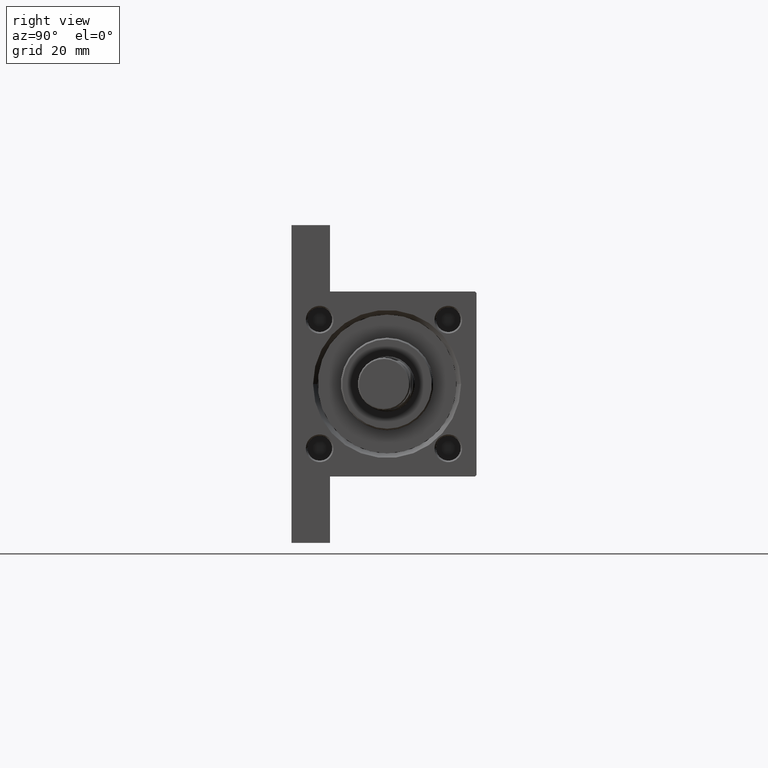
[diagram: clean part render]
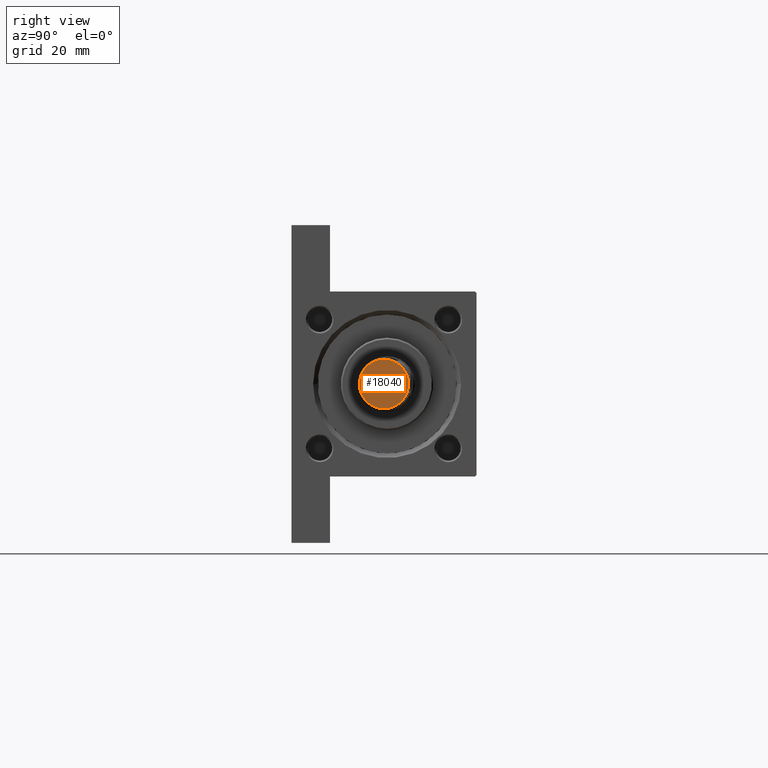
[diagram: same view with one face highlighted and labeled with its STEP entity id]
A machine part, right view. The second image highlights one B-rep face of the part: STEP entity #18040.
In plain terms, the highlighted planar face has unit normal (1, 0, 0).
Its self-contained STEP definition (entity closure, byte-faithful):
#520 = ORIENTED_EDGE ( 'NONE', *, *, #46828, .T. ) ;
#1316 = DIRECTION ( 'NONE',  ( 1.000000000000000000, 0.000000000000000000, -0.000000000000000000 ) ) ;
#1868 = ORIENTED_EDGE ( 'NONE', *, *, #32536, .T. ) ;
#2788 = DIRECTION ( 'NONE',  ( 1.000000000000000000, 0.000000000000000000, 0.000000000000000000 ) ) ;
#4631 = CIRCLE ( 'NONE', #13364, 8.000000000000000000 ) ;
#6283 = PLANE ( 'NONE',  #44111 ) ;
#11821 = DIRECTION ( 'NONE',  ( 0.000000000000000000, 0.000000000000000000, 1.000000000000000000 ) ) ;
#13135 = VERTEX_POINT ( 'NONE', #45649 ) ;
#13364 = AXIS2_PLACEMENT_3D ( 'NONE', #14721, #41269, #2788 ) ;
#14721 = CARTESIAN_POINT ( 'NONE',  ( 0.000000000000000000, 0.000000000000000000, 0.000000000000000000 ) ) ;
#18040 = ADVANCED_FACE ( 'NONE', ( #40300 ), #6283, .T. ) ;
#21467 = CARTESIAN_POINT ( 'NONE',  ( 0.000000000000000000, 0.000000000000000000, 0.000000000000000000 ) ) ;
#24009 = DIRECTION ( 'NONE',  ( 1.000000000000000000, 0.000000000000000000, 0.000000000000000000 ) ) ;
#31423 = CARTESIAN_POINT ( 'NONE',  ( 0.000000000000000000, 0.000000000000000000, 0.000000000000000000 ) ) ;
#32536 = EDGE_CURVE ( 'NONE', #13135, #45804, #34411, .T. ) ;
#32547 = CARTESIAN_POINT ( 'NONE',  ( 8.000000000000000000, 0.000000000000000000, 0.000000000000000000 ) ) ;
#33591 = AXIS2_PLACEMENT_3D ( 'NONE', #31423, #11821, #24009 ) ;
#34411 = CIRCLE ( 'NONE', #33591, 8.000000000000000000 ) ;
#40300 = FACE_OUTER_BOUND ( 'NONE', #48550, .T. ) ;
#41269 = DIRECTION ( 'NONE',  ( 0.000000000000000000, 0.000000000000000000, 1.000000000000000000 ) ) ;
#43046 = DIRECTION ( 'NONE',  ( 0.000000000000000000, 0.000000000000000000, 1.000000000000000000 ) ) ;
#44111 = AXIS2_PLACEMENT_3D ( 'NONE', #21467, #43046, #1316 ) ;
#45649 = CARTESIAN_POINT ( 'NONE',  ( -8.000000000000000000, 1.010333609296566550E-15, 0.000000000000000000 ) ) ;
#45804 = VERTEX_POINT ( 'NONE', #32547 ) ;
#46828 = EDGE_CURVE ( 'NONE', #45804, #13135, #4631, .T. ) ;
#48550 = EDGE_LOOP ( 'NONE', ( #520, #1868 ) ) ;